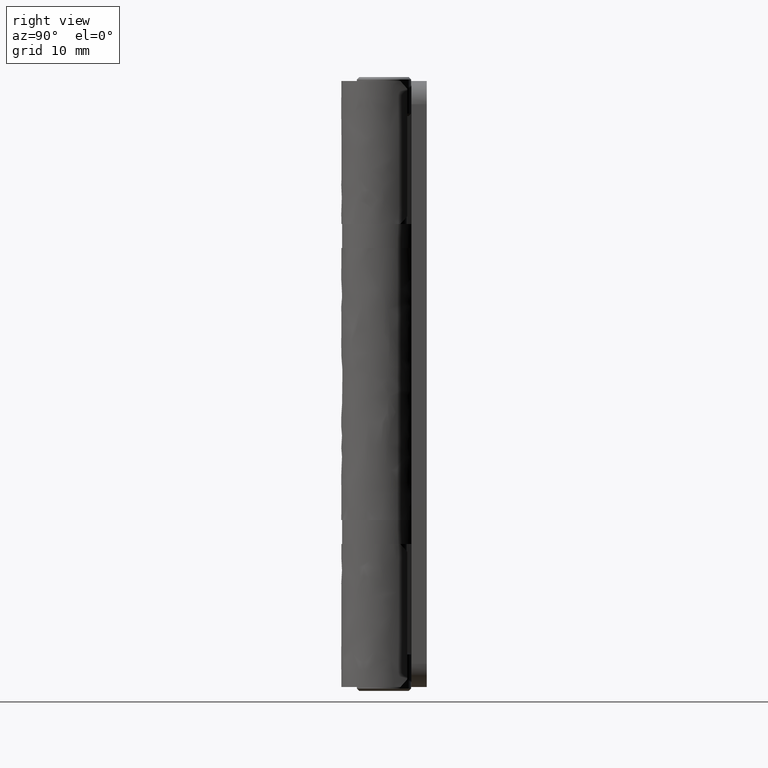
[diagram: clean part render]
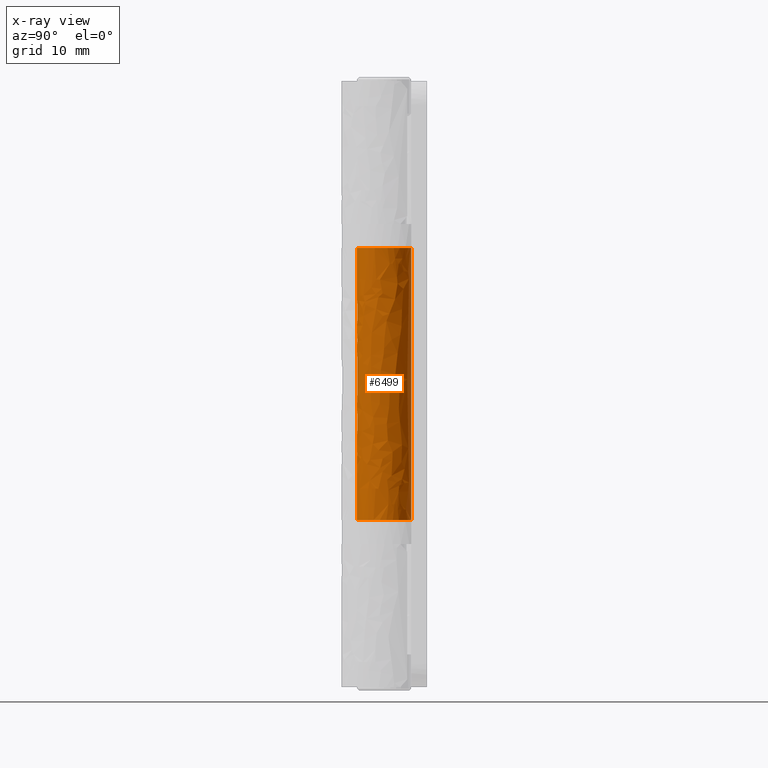
[diagram: x-ray — body ghosted, one internal face saturated and labeled with its STEP entity id]
A machine part, right view, then the same camera in x-ray: the body is ghosted and one INTERNAL B-rep face — a face not visible from any outside direction — is saturated and labeled: STEP entity #6499.
In plain terms, the highlighted face is a freeform B-spline surface patch.
Its self-contained STEP definition (entity closure, byte-faithful):
#5542=CARTESIAN_POINT('',(-2.273737E-013,3.499999999999945,21.500000000000298));
#5543=VERTEX_POINT('',#5542);
#5549=CARTESIAN_POINT('',(-2.273737E-013,3.499999999999945,56.500000000000000));
#5550=VERTEX_POINT('',#5549);
#5551=CARTESIAN_POINT('',(-2.273737E-013,3.499999999999945,56.500000000000000));
#5552=CARTESIAN_POINT('',(-2.273737E-013,3.499999999999945,21.500000000000298));
#5553=QUASI_UNIFORM_CURVE('',1,(#5551,#5552),.UNSPECIFIED.,.F.,.U.);
#5554=EDGE_CURVE('',#5550,#5543,#5553,.T.);
#5753=CARTESIAN_POINT('',(-3.480014533395040,-0.373495444899267,56.500000000000000));
#5754=VERTEX_POINT('',#5753);
#5760=CARTESIAN_POINT('',(-3.441662581124880,0.636363636363667,55.500000000000000));
#5761=VERTEX_POINT('',#5760);
#5762=CARTESIAN_POINT('',(-3.441662581124887,0.636363636363647,55.499999999999979));
#5763=CARTESIAN_POINT('',(-3.534506784420544,0.134231832945507,56.010643118126083));
#5764=CARTESIAN_POINT('',(-3.480014533395035,-0.373495444899313,56.499999999999950));
#5772=(BOUNDED_CURVE()B_SPLINE_CURVE(2,(#5762,#5763,#5764),.UNSPECIFIED.,.F.,.U.)CURVE()GEOMETRIC_REPRESENTATION_ITEM()QUASI_UNIFORM_CURVE()RATIONAL_B_SPLINE_CURVE((1.0,0.989523836878145,1.0))REPRESENTATION_ITEM(''));
#5773=EDGE_CURVE('',#5761,#5754,#5772,.T.);
#5788=CARTESIAN_POINT('',(-3.480014533395030,-0.373495444899323,21.500000000000298));
#5789=VERTEX_POINT('',#5788);
#5790=CARTESIAN_POINT('',(-3.441662581124880,0.636363636363667,22.500000000000501));
#5791=VERTEX_POINT('',#5790);
#5792=CARTESIAN_POINT('',(-3.480014533395034,-0.373495444899323,21.500000000000298));
#5793=CARTESIAN_POINT('',(-3.534506790104528,0.134231885905583,21.989356932918096));
#5794=CARTESIAN_POINT('',(-3.441662562159775,0.636363738933164,22.500000104308430));
#5802=(BOUNDED_CURVE()B_SPLINE_CURVE(2,(#5792,#5793,#5794),.UNSPECIFIED.,.F.,.U.)CURVE()GEOMETRIC_REPRESENTATION_ITEM()QUASI_UNIFORM_CURVE()RATIONAL_B_SPLINE_CURVE((1.0,0.989523834726825,1.0))REPRESENTATION_ITEM(''));
#5803=EDGE_CURVE('',#5789,#5791,#5802,.T.);
#5876=CARTESIAN_POINT('',(-3.176130804121970,1.470439769289040,44.0));
#5877=VERTEX_POINT('',#5876);
#5883=CARTESIAN_POINT('',(-2.933491418229480,1.909090909090855,43.500000000000000));
#5884=VERTEX_POINT('',#5883);
#5885=CARTESIAN_POINT('',(-2.933491418229480,1.909090909090855,43.500000000000000));
#5886=CARTESIAN_POINT('',(-2.933491418229481,1.909090909090855,43.533082003827197));
#5887=CARTESIAN_POINT('',(-2.935268226098782,1.906368538595716,43.565610477369631));
#5888=CARTESIAN_POINT('',(-2.940457193996995,1.898347078722749,43.613606789237103));
#5889=CARTESIAN_POINT('',(-2.942610002397977,1.895011651136497,43.629471836637457));
#5890=CARTESIAN_POINT('',(-2.947767853464226,1.886978395806003,43.660928330944010));
#5891=CARTESIAN_POINT('',(-2.950786897949255,1.882258291748735,43.676560396193203));
#5892=CARTESIAN_POINT('',(-2.960910143508997,1.866325131890464,43.722026863452278));
#5893=CARTESIAN_POINT('',(-2.969115547072711,1.853290056429638,43.750776064029161));
#5894=CARTESIAN_POINT('',(-2.988226535112963,1.822315378845452,43.805176362972738));
#5895=CARTESIAN_POINT('',(-2.999226453396340,1.804210597410676,43.830921931877313));
#5896=CARTESIAN_POINT('',(-3.022814355478523,1.764406010779363,43.877038361111893));
#5897=CARTESIAN_POINT('',(-3.035490465379588,1.742569740285086,43.897719774348580));
#5898=CARTESIAN_POINT('',(-3.062416401157363,1.694803071477634,43.934217276973612));
#5899=CARTESIAN_POINT('',(-3.076455433196294,1.669230818775957,43.949692090994837));
#5900=CARTESIAN_POINT('',(-3.104763423982007,1.615968328866002,43.974518080153729));
#5901=CARTESIAN_POINT('',(-3.119231152431995,1.587905691723247,43.984052570894683));
#5902=CARTESIAN_POINT('',(-3.148062080690760,1.529951830688237,43.996814479459857));
#5903=CARTESIAN_POINT('',(-3.162232682253413,1.500459532021913,43.999999999999993));
#5904=CARTESIAN_POINT('',(-3.176130804122195,1.470439769289152,44.0));
#5905=B_SPLINE_CURVE_WITH_KNOTS('',3,(#5885,#5886,#5887,#5888,#5889,#5890,#5891,#5892,#5893,#5894,#5895,#5896,#5897,#5898,#5899,#5900,#5901,#5902,#5903,#5904),.UNSPECIFIED.,.F.,.U.,(4,2,2,2,2,2,2,2,2,4),(0.0,0.125000000000001,0.187500000000001,0.250000000000001,0.375000000000001,0.500000000000001,0.625000000000001,0.750000000000000,0.875000000000000,1.0),.UNSPECIFIED.);
#5906=EDGE_CURVE('',#5884,#5877,#5905,.T.);
#5957=CARTESIAN_POINT('',(-2.933491418229480,1.909090909090855,34.500000000000000));
#5958=VERTEX_POINT('',#5957);
#5964=CARTESIAN_POINT('',(-3.176130804121970,1.470439769289040,34.0));
#5965=VERTEX_POINT('',#5964);
#5966=CARTESIAN_POINT('',(-3.176130804121970,1.470439769289040,34.0));
#5967=CARTESIAN_POINT('',(-3.162233760075298,1.500457203940046,34.000000000000007));
#5968=CARTESIAN_POINT('',(-3.148140662265746,1.529782805681875,34.003184960190261));
#5969=CARTESIAN_POINT('',(-3.126756549426839,1.572784074852577,34.012599651850273));
#5970=CARTESIAN_POINT('',(-3.119588094298733,1.586952442807273,34.016516251544843));
#5971=CARTESIAN_POINT('',(-3.105183240995928,1.614956647610204,34.025949503919769));
#5972=CARTESIAN_POINT('',(-3.097926977374161,1.628827447233407,34.031492193387663));
#5973=CARTESIAN_POINT('',(-3.076560230738437,1.669041277694933,34.050187122984177));
#5974=CARTESIAN_POINT('',(-3.062695443204135,1.694296448919701,34.065466859589137));
#5975=CARTESIAN_POINT('',(-3.035919922422670,1.741819180995088,34.101637364038453));
#5976=CARTESIAN_POINT('',(-3.022955951722681,1.764163649846273,34.122716217764847));
#5977=CARTESIAN_POINT('',(-2.999351845731390,1.804002376662014,34.168801856449022));
#5978=CARTESIAN_POINT('',(-2.988559743752423,1.821770548797405,34.193970806779241));
#5979=CARTESIAN_POINT('',(-2.969277493815891,1.853032228311628,34.248669712229727));
#5980=CARTESIAN_POINT('',(-2.960974394019384,1.866222848893717,34.277759082577411));
#5981=CARTESIAN_POINT('',(-2.947532946619854,1.887380886933503,34.337980558499112));
#5982=CARTESIAN_POINT('',(-2.942299740985373,1.895498386424027,34.369530084219633));
#5983=CARTESIAN_POINT('',(-2.935268543098132,1.906368400555690,34.434209620367440));
#5984=CARTESIAN_POINT('',(-2.933491418229670,1.909090909090980,34.466918545845338));
#5985=CARTESIAN_POINT('',(-2.933491418229670,1.909090909090980,34.500000000000000));
#5986=B_SPLINE_CURVE_WITH_KNOTS('',3,(#5966,#5967,#5968,#5969,#5970,#5971,#5972,#5973,#5974,#5975,#5976,#5977,#5978,#5979,#5980,#5981,#5982,#5983,#5984,#5985),.UNSPECIFIED.,.F.,.U.,(4,2,2,2,2,2,2,2,2,4),(0.0,0.124999999999991,0.187499999999987,0.249999999999983,0.374999999999986,0.499999999999989,0.624999999999992,0.749999999999994,0.874999999999997,1.0),.UNSPECIFIED.);
#5987=EDGE_CURVE('',#5965,#5958,#5986,.T.);
#6011=CARTESIAN_POINT('',(-3.441662581124880,0.636363636363667,33.500000000000000));
#6012=VERTEX_POINT('',#6011);
#6013=CARTESIAN_POINT('',(-3.315453453671750,1.121502740315570,34.0));
#6014=VERTEX_POINT('',#6013);
#6015=CARTESIAN_POINT('',(-3.441662581124880,0.636363636363667,33.500000000000000));
#6016=CARTESIAN_POINT('',(-3.441662581124880,0.636363636363667,33.533082003827197));
#6017=CARTESIAN_POINT('',(-3.441075722691668,0.639561126707138,33.565610477369653));
#6018=CARTESIAN_POINT('',(-3.439312910309737,0.648950572848867,33.613606789237103));
#6019=CARTESIAN_POINT('',(-3.438576406685662,0.652851498842296,33.629471836637478));
#6020=CARTESIAN_POINT('',(-3.436782910551166,0.662228064868410,33.660928330944010));
#6021=CARTESIAN_POINT('',(-3.435720726457386,0.667729498941897,33.676560396193203));
#6022=CARTESIAN_POINT('',(-3.432086049430208,0.686253397199018,33.722026863452292));
#6023=CARTESIAN_POINT('',(-3.429057004866590,0.701355275524061,33.750776064029168));
#6024=CARTESIAN_POINT('',(-3.421578535086413,0.736974554083093,33.805176362972730));
#6025=CARTESIAN_POINT('',(-3.417083733975981,0.757676681413870,33.830921931877313));
#6026=CARTESIAN_POINT('',(-3.406769393880999,0.802781100597951,33.877038361111907));
#6027=CARTESIAN_POINT('',(-3.400919755275268,0.827343026408150,33.897719774348602));
#6028=CARTESIAN_POINT('',(-3.387541577818781,0.880519008151908,33.934217276973612));
#6029=CARTESIAN_POINT('',(-3.380106887661217,0.908728224927445,33.949692090994837));
#6030=CARTESIAN_POINT('',(-3.363945437076028,0.966840553126498,33.974518080153750));
#6031=CARTESIAN_POINT('',(-3.355106292799522,0.997150556398815,33.984052570894697));
#6032=CARTESIAN_POINT('',(-3.336092778227975,1.059024288278869,33.996814479459850));
#6033=CARTESIAN_POINT('',(-3.326053535420750,1.090166144889044,34.000000000000007));
#6034=CARTESIAN_POINT('',(-3.315453453672000,1.121502740315648,34.0));
#6035=B_SPLINE_CURVE_WITH_KNOTS('',3,(#6015,#6016,#6017,#6018,#6019,#6020,#6021,#6022,#6023,#6024,#6025,#6026,#6027,#6028,#6029,#6030,#6031,#6032,#6033,#6034),.UNSPECIFIED.,.F.,.U.,(4,2,2,2,2,2,2,2,2,4),(0.0,0.125000000000000,0.187500000000000,0.250000000000000,0.375000000000000,0.500000000000000,0.625000000000000,0.750000000000000,0.875000000000000,1.0),.UNSPECIFIED.);
#6036=EDGE_CURVE('',#6012,#6014,#6035,.T.);
#6092=CARTESIAN_POINT('',(-3.315453453671750,1.121502740315570,44.0));
#6093=VERTEX_POINT('',#6092);
#6094=CARTESIAN_POINT('',(-3.441662581124880,0.636363636363667,44.500000000000000));
#6095=VERTEX_POINT('',#6094);
#6096=CARTESIAN_POINT('',(-3.315453453671750,1.121502740315570,44.0));
#6097=CARTESIAN_POINT('',(-3.326052713366805,1.090168575093255,44.000000000000007));
#6098=CARTESIAN_POINT('',(-3.336033333284652,1.059200954108662,44.003184960190261));
#6099=CARTESIAN_POINT('',(-3.350147135692553,1.013296814711555,44.012599651850259));
#6100=CARTESIAN_POINT('',(-3.354708522280449,0.998087503358995,44.016516251544829));
#6101=CARTESIAN_POINT('',(-3.363553005441117,0.967863168743648,44.025949503919733));
#6102=CARTESIAN_POINT('',(-3.367845780313944,0.952809115208905,44.031492193387642));
#6103=CARTESIAN_POINT('',(-3.380052318721107,0.908937821151197,44.050187122984177));
#6104=CARTESIAN_POINT('',(-3.387394945045052,0.881078498732466,44.065466859589137));
#6105=CARTESIAN_POINT('',(-3.400714160950372,0.828182969009293,44.101637364038460));
#6106=CARTESIAN_POINT('',(-3.406705124097109,0.803054336234588,44.122716217764847));
#6107=CARTESIAN_POINT('',(-3.417031230534679,0.757914005046310,44.168801856449022));
#6108=CARTESIAN_POINT('',(-3.421444857431137,0.737599052332205,44.193970806779227));
#6109=CARTESIAN_POINT('',(-3.428996836073635,0.701653741271537,44.248669712229727));
#6110=CARTESIAN_POINT('',(-3.432062183213526,0.686371804729221,44.277759082577390));
#6111=CARTESIAN_POINT('',(-3.436889820460262,0.661774467464768,44.337980558499133));
#6112=CARTESIAN_POINT('',(-3.438686708116468,0.652284924064667,44.369530084219633));
#6113=CARTESIAN_POINT('',(-3.441075857439836,0.639561445119712,44.434209620367433));
#6114=CARTESIAN_POINT('',(-3.441662581124880,0.636363636363667,44.466918545845338));
#6115=CARTESIAN_POINT('',(-3.441662581124880,0.636363636363667,44.500000000000000));
#6116=B_SPLINE_CURVE_WITH_KNOTS('',3,(#6096,#6097,#6098,#6099,#6100,#6101,#6102,#6103,#6104,#6105,#6106,#6107,#6108,#6109,#6110,#6111,#6112,#6113,#6114,#6115),.UNSPECIFIED.,.F.,.U.,(4,2,2,2,2,2,2,2,2,4),(0.0,0.124999999999991,0.187499999999987,0.249999999999983,0.374999999999986,0.499999999999989,0.624999999999992,0.749999999999994,0.874999999999997,1.0),.UNSPECIFIED.);
#6117=EDGE_CURVE('',#6093,#6095,#6116,.T.);
#6164=CARTESIAN_POINT('',(-3.176130804121971,1.470439769289040,34.0));
#6165=CARTESIAN_POINT('',(-3.255170197897708,1.299715705268633,34.0));
#6166=CARTESIAN_POINT('',(-3.315453453671747,1.121502740315569,34.0));
#6174=(BOUNDED_CURVE()B_SPLINE_CURVE(2,(#6164,#6165,#6166),.UNSPECIFIED.,.F.,.U.)CURVE()GEOMETRIC_REPRESENTATION_ITEM()QUASI_UNIFORM_CURVE()RATIONAL_B_SPLINE_CURVE((1.0,0.998558472725411,1.0))REPRESENTATION_ITEM(''));
#6175=EDGE_CURVE('',#5965,#6014,#6174,.T.);
#6214=CARTESIAN_POINT('',(-3.176130804121971,1.470439769289040,44.0));
#6215=CARTESIAN_POINT('',(-3.255170197897708,1.299715705268633,44.000000000000007));
#6216=CARTESIAN_POINT('',(-3.315453453671747,1.121502740315569,44.0));
#6224=(BOUNDED_CURVE()B_SPLINE_CURVE(2,(#6214,#6215,#6216),.UNSPECIFIED.,.F.,.U.)CURVE()GEOMETRIC_REPRESENTATION_ITEM()QUASI_UNIFORM_CURVE()RATIONAL_B_SPLINE_CURVE((1.0,0.998558472725411,1.0))REPRESENTATION_ITEM(''));
#6225=EDGE_CURVE('',#5877,#6093,#6224,.T.);
#6236=CARTESIAN_POINT('',(-2.933491418229480,1.909090909090855,43.500000000000000));
#6237=CARTESIAN_POINT('',(-2.933491418229480,1.909090909090855,34.500000000000000));
#6238=QUASI_UNIFORM_CURVE('',1,(#6236,#6237),.UNSPECIFIED.,.F.,.U.);
#6239=EDGE_CURVE('',#5884,#5958,#6238,.T.);
#6291=CARTESIAN_POINT('',(-3.480014533395030,-0.373495444899323,21.500000000000298));
#6292=CARTESIAN_POINT('',(-3.457634400451863,-0.582173721240264,21.500000000000298));
#6293=CARTESIAN_POINT('',(-3.371062290525382,-1.016164298164536,21.500000000000309));
#6294=CARTESIAN_POINT('',(-3.140932924482509,-1.582860870493437,21.500000000000270));
#6295=CARTESIAN_POINT('',(-2.829589920836285,-2.083093099453628,21.500000000000359));
#6296=CARTESIAN_POINT('',(-2.404353249357058,-2.578394599218570,21.500000000000281));
#6297=CARTESIAN_POINT('',(-1.816834034609494,-3.029027604272961,21.500000000000309));
#6298=CARTESIAN_POINT('',(-1.122989864374078,-3.339214460245449,21.500000000000249));
#6299=CARTESIAN_POINT('',(-0.424169554453762,-3.497343041913761,21.500000000000480));
#6300=CARTESIAN_POINT('',(0.335588146771743,-3.516162970674880,21.500000000000011));
#6301=CARTESIAN_POINT('',(1.059836154771760,-3.362363788586611,21.500000000000270));
#6302=CARTESIAN_POINT('',(1.772521728399405,-3.047454298272378,21.500000000000622));
#6303=CARTESIAN_POINT('',(2.425482673472623,-2.578477664931683,21.499999999999709));
#6304=CARTESIAN_POINT('',(2.922426183959267,-1.972511589435851,21.500000000000480));
#6305=CARTESIAN_POINT('',(3.301500564945916,-1.244590024487662,21.500000000000270));
#6306=CARTESIAN_POINT('',(3.511958521006192,-0.466741363108290,21.500000000000231));
#6307=CARTESIAN_POINT('',(3.507316200005216,0.337148227912662,21.500000000000401));
#6308=CARTESIAN_POINT('',(3.366905524502357,1.017210158205474,21.500000000000469));
#6309=CARTESIAN_POINT('',(3.120098893424294,1.645407994438756,21.500000000000281));
#6310=CARTESIAN_POINT('',(2.731898245968239,2.224742639641062,21.500000000000082));
#6311=CARTESIAN_POINT('',(2.194334161573022,2.759296601657372,21.500000000000579));
#6312=CARTESIAN_POINT('',(1.626493439646852,3.127832963087158,21.499999999999769));
#6313=CARTESIAN_POINT('',(0.860442601517900,3.423885701216606,21.500000000001329));
#6314=CARTESIAN_POINT('',(0.335822378169395,3.500128901917328,21.499999999998739));
#6315=CARTESIAN_POINT('',(-2.273737E-013,3.499999999999945,21.500000000000298));
#6316=B_SPLINE_CURVE_WITH_KNOTS('',3,(#6291,#6292,#6293,#6294,#6295,#6296,#6297,#6298,#6299,#6300,#6301,#6302,#6303,#6304,#6305,#6306,#6307,#6308,#6309,#6310,#6311,#6312,#6313,#6314,#6315),.UNSPECIFIED.,.F.,.U.,(4,1,1,1,1,1,1,1,1,1,1,1,1,1,1,1,1,1,1,1,1,1,4),(0.000000128392877,0.629632146975769,1.322275503200601,1.826004244478813,2.392714377990124,3.274251956665395,4.029851462066995,4.659550842638991,5.415055212439297,6.296592939876089,6.863297920433521,7.744850806648952,8.689363992356350,9.193082650330943,10.200571440347650,11.082018954234160,11.585766569396609,12.278397942561471,13.096982586489670,13.663690906029171,14.545226806316069,15.111939227892369,16.119370799945070),.UNSPECIFIED.);
#6317=EDGE_CURVE('',#5789,#5543,#6316,.T.);
#6330=CARTESIAN_POINT('',(-2.273737E-013,3.499999999999945,56.500000000000000));
#6331=CARTESIAN_POINT('',(0.251865098315223,3.500040607452688,56.500000000000007));
#6332=CARTESIAN_POINT('',(0.671605869401740,3.454486661323142,56.500000000000092));
#6333=CARTESIAN_POINT('',(1.256729497241216,3.281232801321803,56.499999999999943));
#6334=CARTESIAN_POINT('',(1.847182094574472,3.002826331741158,56.500000000000149));
#6335=CARTESIAN_POINT('',(2.387054273659382,2.594384247740602,56.500000000000000));
#6336=CARTESIAN_POINT('',(2.815607884337264,2.101952531378658,56.499999999999993));
#6337=CARTESIAN_POINT('',(3.164055497939196,1.550447515942492,56.499999999999737));
#6338=CARTESIAN_POINT('',(3.405957378762358,0.918174355450469,56.500000000000291));
#6339=CARTESIAN_POINT('',(3.518957503087177,0.168001880796603,56.500000000000043));
#6340=CARTESIAN_POINT('',(3.481338554658355,-0.612191819614050,56.499999999998757));
#6341=CARTESIAN_POINT('',(3.268515736437904,-1.322254253341018,56.500000000003098));
#6342=CARTESIAN_POINT('',(2.936684376973903,-1.932292010574563,56.499999999996589));
#6343=CARTESIAN_POINT('',(2.562017085245660,-2.415113727148048,56.500000000003503));
#6344=CARTESIAN_POINT('',(2.007982476282125,-2.903002210677405,56.499999999997861));
#6345=CARTESIAN_POINT('',(1.319937666634923,-3.276216946365938,56.500000000001293));
#6346=CARTESIAN_POINT('',(0.463799334945622,-3.506926895824747,56.499999999999133));
#6347=CARTESIAN_POINT('',(-0.320743297061219,-3.515830478634605,56.500000000000959));
#6348=CARTESIAN_POINT('',(-0.999833567110644,-3.368407256500408,56.500000000000753));
#6349=CARTESIAN_POINT('',(-1.549924426846870,-3.157304798437667,56.499999999999403));
#6350=CARTESIAN_POINT('',(-2.093496652453819,-2.833419825311054,56.500000000000163));
#6351=CARTESIAN_POINT('',(-2.672333000632458,-2.309960158073999,56.500000000000149));
#6352=CARTESIAN_POINT('',(-3.055946638588253,-1.751233269267416,56.499999999999332));
#6353=CARTESIAN_POINT('',(-3.350983096497040,-1.077294556893623,56.500000000002053));
#6354=CARTESIAN_POINT('',(-3.448739439592189,-0.665669743975375,56.499999999996419));
#6355=CARTESIAN_POINT('',(-3.480014533395040,-0.373495444899267,56.500000000000000));
#6356=B_SPLINE_CURVE_WITH_KNOTS('',3,(#6330,#6331,#6332,#6333,#6334,#6335,#6336,#6337,#6338,#6339,#6340,#6341,#6342,#6343,#6344,#6345,#6346,#6347,#6348,#6349,#6350,#6351,#6352,#6353,#6354,#6355),.UNSPECIFIED.,.F.,.U.,(4,1,1,1,1,1,1,1,1,1,1,1,1,1,1,1,1,1,1,1,1,1,1,4),(0.000000128393996,0.755594334391670,1.259299936165411,1.826004244479757,2.707553171164891,3.274251956666197,3.778004416137113,4.659550842639634,5.289218985520000,6.044718787908273,6.989232674185084,7.492976050036717,8.122654928022790,8.815301965443226,9.696848912801467,10.452438061840560,11.459826437185990,12.026541571379569,12.530279712680240,13.222920872603209,13.915557861087869,14.860080558161201,15.237862327405800,16.119370799945131),.UNSPECIFIED.);
#6357=EDGE_CURVE('',#5550,#5754,#6356,.T.);
#6448=CARTESIAN_POINT('',(-3.441662581124880,0.636363636363667,55.500000000000000));
#6449=CARTESIAN_POINT('',(-3.441662581124880,0.636363636363667,44.500000000000000));
#6450=QUASI_UNIFORM_CURVE('',1,(#6448,#6449),.UNSPECIFIED.,.F.,.U.);
#6451=EDGE_CURVE('',#5761,#6095,#6450,.T.);
#6457=CARTESIAN_POINT('',(-2.867883956376498,2.006300479180323,57.375000000000000));
#6458=CARTESIAN_POINT('',(-2.867883956376498,2.006300479180323,20.603125000000301));
#6459=CARTESIAN_POINT('',(-5.375144242692621,-1.577674914437229,57.375000000000000));
#6460=CARTESIAN_POINT('',(-5.375144242692621,-1.577674914437229,20.603125000000297));
#6461=CARTESIAN_POINT('',(-1.328606051967236,-3.238025008963990,57.375000000000000));
#6462=CARTESIAN_POINT('',(-1.328606051967236,-3.238025008963990,20.603125000000301));
#6463=CARTESIAN_POINT('',(2.717932138758150,-4.898375103490748,57.375000000000000));
#6464=CARTESIAN_POINT('',(2.717932138758150,-4.898375103490748,20.603125000000297));
#6465=CARTESIAN_POINT('',(3.450553770702137,-0.586241141077033,57.375000000000000));
#6466=CARTESIAN_POINT('',(3.450553770702137,-0.586241141077033,20.603125000000301));
#6467=CARTESIAN_POINT('',(4.183175402646123,3.725892821336684,57.375000000000000));
#6468=CARTESIAN_POINT('',(4.183175402646123,3.725892821336684,20.603125000000297));
#6469=CARTESIAN_POINT('',(-0.184659315085208,3.495125310679427,57.375000000000000));
#6470=CARTESIAN_POINT('',(-0.184659315085208,3.495125310679427,20.603125000000301));
#6478=(BOUNDED_SURFACE()B_SPLINE_SURFACE(1,2,((#6457,#6459,#6461,#6463,#6465,#6467,#6469),(#6458,#6460,#6462,#6464,#6466,#6468,#6470)),.UNSPECIFIED.,.F.,.F.,.U.)B_SPLINE_SURFACE_WITH_KNOTS((2,2),(3,2,2,3),(0.0,36.771874999999703),(0.0,6.727716423168561,13.455432846337120,20.183149269505680),.UNSPECIFIED.)GEOMETRIC_REPRESENTATION_ITEM()RATIONAL_B_SPLINE_SURFACE(((1.0,0.624788514543960,1.0,0.624788514543960,1.0,0.624788514543960,1.0),(1.0,0.624788514543960,1.0,0.624788514543960,1.0,0.624788514543960,1.0)))REPRESENTATION_ITEM('')SURFACE());
#6479=ORIENTED_EDGE('',*,*,#6317,.F.);
#6480=ORIENTED_EDGE('',*,*,#5803,.T.);
#6481=CARTESIAN_POINT('',(-3.441662581124880,0.636363636363667,33.500000000000000));
#6482=CARTESIAN_POINT('',(-3.441662581124880,0.636363636363667,22.500000000000501));
#6483=QUASI_UNIFORM_CURVE('',1,(#6481,#6482),.UNSPECIFIED.,.F.,.U.);
#6484=EDGE_CURVE('',#6012,#5791,#6483,.T.);
#6485=ORIENTED_EDGE('',*,*,#6484,.F.);
#6486=ORIENTED_EDGE('',*,*,#6036,.T.);
#6487=ORIENTED_EDGE('',*,*,#6175,.F.);
#6488=ORIENTED_EDGE('',*,*,#5987,.T.);
#6489=ORIENTED_EDGE('',*,*,#6239,.F.);
#6490=ORIENTED_EDGE('',*,*,#5906,.T.);
#6491=ORIENTED_EDGE('',*,*,#6225,.T.);
#6492=ORIENTED_EDGE('',*,*,#6117,.T.);
#6493=ORIENTED_EDGE('',*,*,#6451,.F.);
#6494=ORIENTED_EDGE('',*,*,#5773,.T.);
#6495=ORIENTED_EDGE('',*,*,#6357,.F.);
#6496=ORIENTED_EDGE('',*,*,#5554,.T.);
#6497=EDGE_LOOP('',(#6479,#6480,#6485,#6486,#6487,#6488,#6489,#6490,#6491,#6492,#6493,#6494,#6495,#6496));
#6498=FACE_OUTER_BOUND('',#6497,.T.);
#6499=ADVANCED_FACE('',(#6498),#6478,.F.);